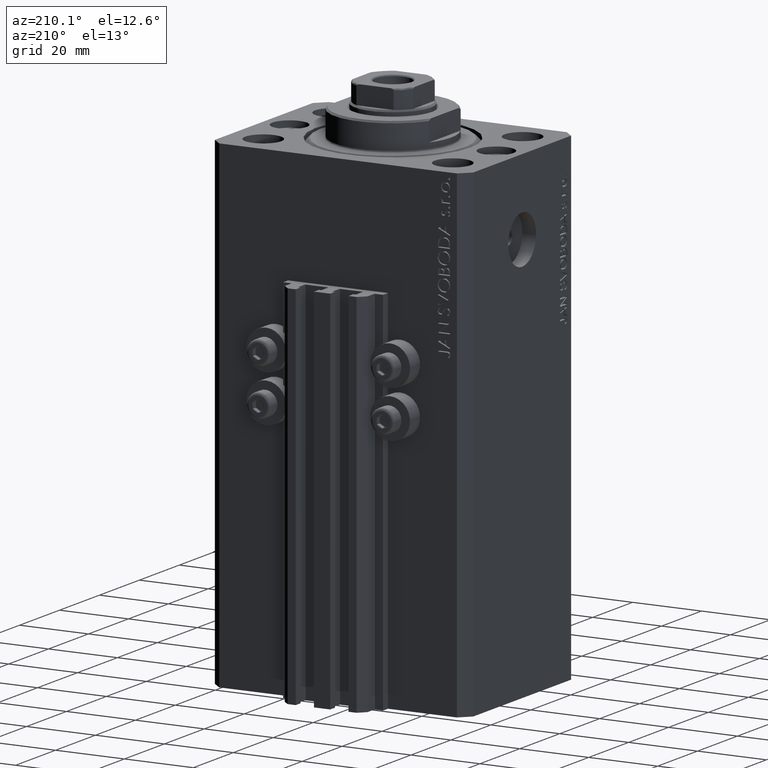
[diagram: clean part render]
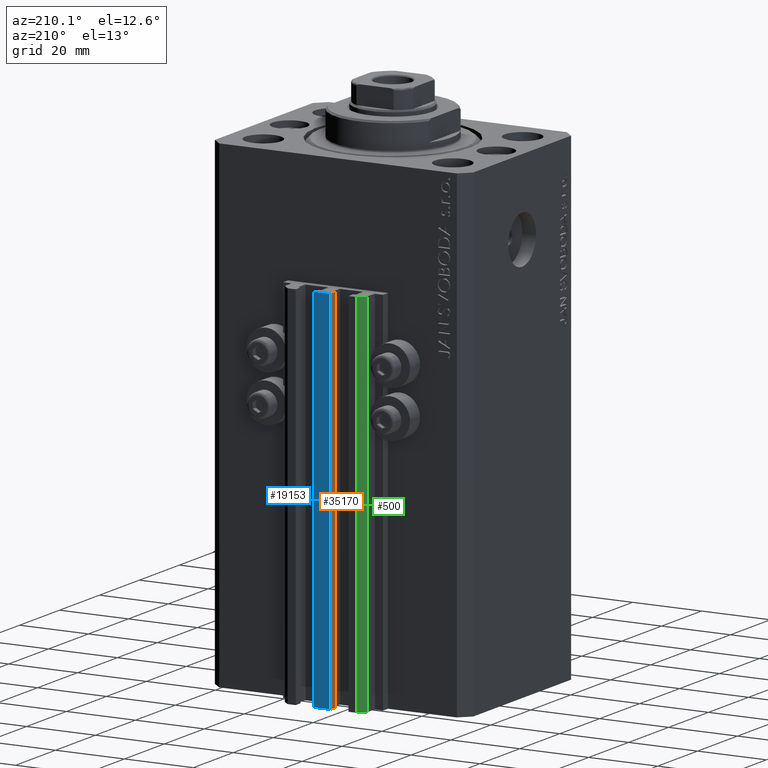
[diagram: same view with three faces highlighted in distinct colors, each labeled with its STEP entity id]
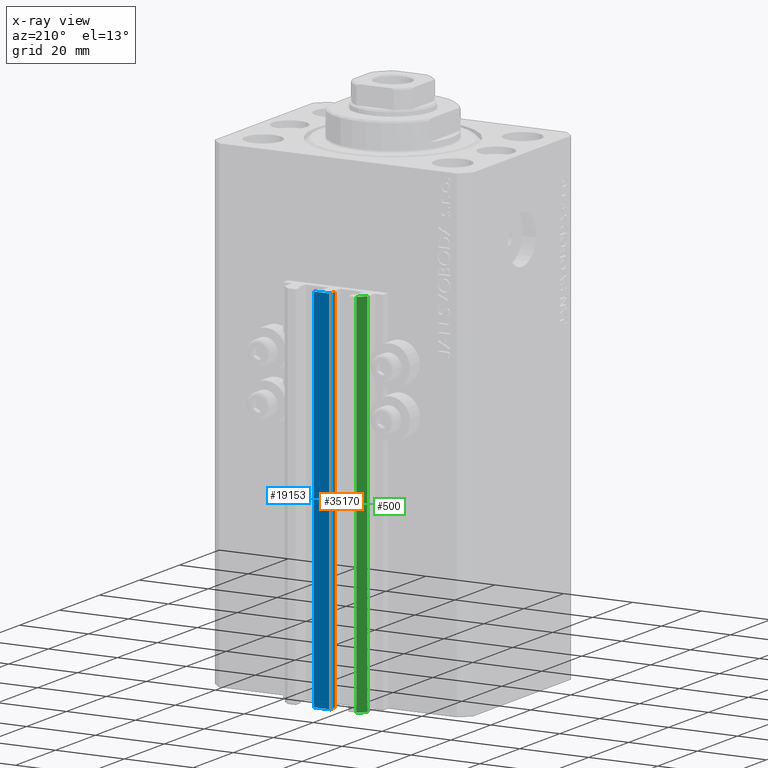
[diagram: x-ray of the same camera — body ghosted, the three highlighted faces saturated]
A machine part, auxiliary view with three faces highlighted in distinct colors.
The next image is the same camera in x-ray (body ghosted, the three faces saturated) — at least one of them is partly hidden behind the body in this view.
Their STEP definitions:

[orange] entity #35170 — the highlighted planar face has unit normal (-1, -0, 0).
#1233 = VECTOR ( 'NONE', #3843, 1000.000000000000000 ) ;
#1907 = CARTESIAN_POINT ( 'NONE',  ( -2.350000000000003642, 35.50000000000001421, -140.0000000000000000 ) ) ;
#2852 = EDGE_LOOP ( 'NONE', ( #34114, #17042, #22847, #43846 ) ) ;
#3843 = DIRECTION ( 'NONE',  ( 1.807003620809174632E-16, -1.000000000000000000, 0.000000000000000000 ) ) ;
#5410 = EDGE_CURVE ( 'NONE', #11177, #45036, #20786, .T. ) ;
#6282 = EDGE_CURVE ( 'NONE', #38678, #12395, #45554, .T. ) ;
#9202 = CARTESIAN_POINT ( 'NONE',  ( -2.350000000000003642, 35.50000000000001421, -140.0000000000000000 ) ) ;
#10417 = LINE ( 'NONE', #20544, #37657 ) ;
#11177 = VERTEX_POINT ( 'NONE', #14692 ) ;
#12395 = VERTEX_POINT ( 'NONE', #12778 ) ;
#12778 = CARTESIAN_POINT ( 'NONE',  ( -2.350000000000003197, 33.10000000000000853, -33.00000000000000000 ) ) ;
#13031 = CARTESIAN_POINT ( 'NONE',  ( -2.350000000000003642, 35.50000000000001421, -33.00000000000000000 ) ) ;
#13668 = FACE_OUTER_BOUND ( 'NONE', #2852, .T. ) ;
#14120 = DIRECTION ( 'NONE',  ( -1.000000000000000000, -1.807003620809174878E-16, 0.000000000000000000 ) ) ;
#14692 = CARTESIAN_POINT ( 'NONE',  ( -2.350000000000003642, 35.50000000000001421, -140.0000000000000000 ) ) ;
#17042 = ORIENTED_EDGE ( 'NONE', *, *, #5410, .F. ) ;
#18218 = CARTESIAN_POINT ( 'NONE',  ( -2.350000000000003197, 33.10000000000000853, -140.0000000000000000 ) ) ;
#20544 = CARTESIAN_POINT ( 'NONE',  ( -2.350000000000003642, 35.50000000000001421, -140.0000000000000000 ) ) ;
#20786 = LINE ( 'NONE', #1907, #35688 ) ;
#22847 = ORIENTED_EDGE ( 'NONE', *, *, #37185, .T. ) ;
#32863 = DIRECTION ( 'NONE',  ( 1.807003620809174632E-16, -1.000000000000000000, 0.000000000000000000 ) ) ;
#33013 = AXIS2_PLACEMENT_3D ( 'NONE', #9202, #14120, #35404 ) ;
#34114 = ORIENTED_EDGE ( 'NONE', *, *, #44235, .F. ) ;
#35170 = ADVANCED_FACE ( 'NONE', ( #13668 ), #45249, .T. ) ;
#35342 = DIRECTION ( 'NONE',  ( 0.000000000000000000, 0.000000000000000000, 1.000000000000000000 ) ) ;
#35404 = DIRECTION ( 'NONE',  ( 1.807003620809174878E-16, -1.000000000000000000, 0.000000000000000000 ) ) ;
#35688 = VECTOR ( 'NONE', #35342, 1000.000000000000000 ) ;
#36321 = CARTESIAN_POINT ( 'NONE',  ( -2.350000000000003642, 35.50000000000001421, -33.00000000000000000 ) ) ;
#37185 = EDGE_CURVE ( 'NONE', #11177, #38678, #10417, .T. ) ;
#37657 = VECTOR ( 'NONE', #32863, 1000.000000000000000 ) ;
#38678 = VERTEX_POINT ( 'NONE', #18218 ) ;
#40233 = VECTOR ( 'NONE', #45789, 1000.000000000000000 ) ;
#42212 = CARTESIAN_POINT ( 'NONE',  ( -2.350000000000003197, 33.10000000000000853, -140.0000000000000000 ) ) ;
#43846 = ORIENTED_EDGE ( 'NONE', *, *, #6282, .T. ) ;
#44235 = EDGE_CURVE ( 'NONE', #45036, #12395, #47052, .T. ) ;
#45036 = VERTEX_POINT ( 'NONE', #13031 ) ;
#45249 = PLANE ( 'NONE',  #33013 ) ;
#45554 = LINE ( 'NONE', #42212, #40233 ) ;
#45789 = DIRECTION ( 'NONE',  ( 0.000000000000000000, 0.000000000000000000, 1.000000000000000000 ) ) ;
#47052 = LINE ( 'NONE', #36321, #1233 ) ;

[blue] entity #19153 — the highlighted planar face has unit normal (0, -1, 0).
#1054 = EDGE_CURVE ( 'NONE', #34174, #40271, #31830, .T. ) ;
#1907 = CARTESIAN_POINT ( 'NONE',  ( -2.350000000000003642, 35.50000000000001421, -140.0000000000000000 ) ) ;
#2747 = VECTOR ( 'NONE', #10094, 1000.000000000000000 ) ;
#3298 = EDGE_CURVE ( 'NONE', #11177, #34174, #36014, .T. ) ;
#3533 = CARTESIAN_POINT ( 'NONE',  ( -2.350000000000003642, 35.50000000000001421, -140.0000000000000000 ) ) ;
#4564 = DIRECTION ( 'NONE',  ( 0.000000000000000000, -0.000000000000000000, -1.000000000000000000 ) ) ;
#5410 = EDGE_CURVE ( 'NONE', #11177, #45036, #20786, .T. ) ;
#10094 = DIRECTION ( 'NONE',  ( 0.000000000000000000, 0.000000000000000000, 1.000000000000000000 ) ) ;
#11177 = VERTEX_POINT ( 'NONE', #14692 ) ;
#11460 = EDGE_LOOP ( 'NONE', ( #17684, #18397, #40212, #21810 ) ) ;
#11485 = PLANE ( 'NONE',  #31229 ) ;
#13031 = CARTESIAN_POINT ( 'NONE',  ( -2.350000000000003642, 35.50000000000001421, -33.00000000000000000 ) ) ;
#14692 = CARTESIAN_POINT ( 'NONE',  ( -2.350000000000003642, 35.50000000000001421, -140.0000000000000000 ) ) ;
#17684 = ORIENTED_EDGE ( 'NONE', *, *, #24882, .T. ) ;
#18397 = ORIENTED_EDGE ( 'NONE', *, *, #1054, .F. ) ;
#18503 = LINE ( 'NONE', #36888, #35808 ) ;
#19153 = ADVANCED_FACE ( 'NONE', ( #33459 ), #11485, .F. ) ;
#20786 = LINE ( 'NONE', #1907, #35688 ) ;
#21810 = ORIENTED_EDGE ( 'NONE', *, *, #5410, .T. ) ;
#21865 = CARTESIAN_POINT ( 'NONE',  ( 2.349999999999999645, 35.50000000000001421, -33.00000000000000000 ) ) ;
#23188 = DIRECTION ( 'NONE',  ( 0.000000000000000000, -1.000000000000000000, 0.000000000000000000 ) ) ;
#24201 = CARTESIAN_POINT ( 'NONE',  ( 2.349999999999999645, 35.50000000000001421, -140.0000000000000000 ) ) ;
#24882 = EDGE_CURVE ( 'NONE', #45036, #40271, #18503, .T. ) ;
#26041 = CARTESIAN_POINT ( 'NONE',  ( -2.350000000000003642, 35.50000000000001421, -140.0000000000000000 ) ) ;
#26471 = VECTOR ( 'NONE', #29569, 1000.000000000000000 ) ;
#28539 = CARTESIAN_POINT ( 'NONE',  ( 2.349999999999999645, 35.50000000000001421, -140.0000000000000000 ) ) ;
#29569 = DIRECTION ( 'NONE',  ( 1.000000000000000000, 0.000000000000000000, 0.000000000000000000 ) ) ;
#31229 = AXIS2_PLACEMENT_3D ( 'NONE', #26041, #23188, #4564 ) ;
#31830 = LINE ( 'NONE', #24201, #2747 ) ;
#33459 = FACE_OUTER_BOUND ( 'NONE', #11460, .T. ) ;
#34174 = VERTEX_POINT ( 'NONE', #28539 ) ;
#35342 = DIRECTION ( 'NONE',  ( 0.000000000000000000, 0.000000000000000000, 1.000000000000000000 ) ) ;
#35688 = VECTOR ( 'NONE', #35342, 1000.000000000000000 ) ;
#35808 = VECTOR ( 'NONE', #44509, 1000.000000000000000 ) ;
#36014 = LINE ( 'NONE', #3533, #26471 ) ;
#36888 = CARTESIAN_POINT ( 'NONE',  ( -2.350000000000003642, 35.50000000000001421, -33.00000000000000000 ) ) ;
#40212 = ORIENTED_EDGE ( 'NONE', *, *, #3298, .F. ) ;
#40271 = VERTEX_POINT ( 'NONE', #21865 ) ;
#44509 = DIRECTION ( 'NONE',  ( 1.000000000000000000, 0.000000000000000000, 0.000000000000000000 ) ) ;
#45036 = VERTEX_POINT ( 'NONE', #13031 ) ;

[green] entity #500 — the highlighted planar face has unit normal (-0.7071, 0.7071, 0).
#500 = ADVANCED_FACE ( 'NONE', ( #30764 ), #12616, .T. ) ;
#4195 = CARTESIAN_POINT ( 'NONE',  ( -12.00000000000000000, 33.49999999999998579, -33.00000000000000000 ) ) ;
#4788 = CARTESIAN_POINT ( 'NONE',  ( -12.00000000000000000, 33.49999999999998579, -140.0000000000000000 ) ) ;
#5290 = CARTESIAN_POINT ( 'NONE',  ( -10.00000000000000000, 35.50000000000000000, -33.00000000000000000 ) ) ;
#5877 = ORIENTED_EDGE ( 'NONE', *, *, #22580, .F. ) ;
#6804 = EDGE_CURVE ( 'NONE', #29316, #42630, #20802, .T. ) ;
#7068 = LINE ( 'NONE', #47184, #20523 ) ;
#7636 = VERTEX_POINT ( 'NONE', #5290 ) ;
#12094 = VECTOR ( 'NONE', #46561, 1000.000000000000227 ) ;
#12616 = PLANE ( 'NONE',  #45427 ) ;
#13935 = LINE ( 'NONE', #28974, #35539 ) ;
#14809 = EDGE_LOOP ( 'NONE', ( #5877, #30931, #27269, #27192 ) ) ;
#16674 = CARTESIAN_POINT ( 'NONE',  ( -10.00000000000000000, 35.50000000000000000, -140.0000000000000000 ) ) ;
#18891 = LINE ( 'NONE', #4788, #30899 ) ;
#20523 = VECTOR ( 'NONE', #43601, 1000.000000000000227 ) ;
#20802 = LINE ( 'NONE', #35356, #12094 ) ;
#21262 = CARTESIAN_POINT ( 'NONE',  ( -12.00000000000000000, 33.49999999999998579, -140.0000000000000000 ) ) ;
#22580 = EDGE_CURVE ( 'NONE', #7636, #37241, #7068, .T. ) ;
#25374 = DIRECTION ( 'NONE',  ( 0.000000000000000000, 0.000000000000000000, 1.000000000000000000 ) ) ;
#26277 = DIRECTION ( 'NONE',  ( 0.000000000000000000, 0.000000000000000000, 1.000000000000000000 ) ) ;
#27188 = CARTESIAN_POINT ( 'NONE',  ( -10.00000000000000000, 35.50000000000000000, -140.0000000000000000 ) ) ;
#27192 = ORIENTED_EDGE ( 'NONE', *, *, #40710, .T. ) ;
#27269 = ORIENTED_EDGE ( 'NONE', *, *, #6804, .T. ) ;
#28974 = CARTESIAN_POINT ( 'NONE',  ( -10.00000000000000000, 35.50000000000000000, -140.0000000000000000 ) ) ;
#29316 = VERTEX_POINT ( 'NONE', #16674 ) ;
#30292 = DIRECTION ( 'NONE',  ( -0.7071067811865460184, -0.7071067811865489050, 0.000000000000000000 ) ) ;
#30764 = FACE_OUTER_BOUND ( 'NONE', #14809, .T. ) ;
#30899 = VECTOR ( 'NONE', #26277, 1000.000000000000000 ) ;
#30931 = ORIENTED_EDGE ( 'NONE', *, *, #43304, .F. ) ;
#34581 = DIRECTION ( 'NONE',  ( -0.7071067811865490160, 0.7071067811865461294, 0.000000000000000000 ) ) ;
#35356 = CARTESIAN_POINT ( 'NONE',  ( -10.00000000000000000, 35.50000000000000000, -140.0000000000000000 ) ) ;
#35539 = VECTOR ( 'NONE', #25374, 1000.000000000000000 ) ;
#37241 = VERTEX_POINT ( 'NONE', #4195 ) ;
#40710 = EDGE_CURVE ( 'NONE', #42630, #37241, #18891, .T. ) ;
#42630 = VERTEX_POINT ( 'NONE', #21262 ) ;
#43304 = EDGE_CURVE ( 'NONE', #29316, #7636, #13935, .T. ) ;
#43601 = DIRECTION ( 'NONE',  ( -0.7071067811865460184, -0.7071067811865490160, 0.000000000000000000 ) ) ;
#45427 = AXIS2_PLACEMENT_3D ( 'NONE', #27188, #34581, #30292 ) ;
#46561 = DIRECTION ( 'NONE',  ( -0.7071067811865460184, -0.7071067811865490160, 0.000000000000000000 ) ) ;
#47184 = CARTESIAN_POINT ( 'NONE',  ( -10.00000000000000000, 35.50000000000000000, -33.00000000000000000 ) ) ;